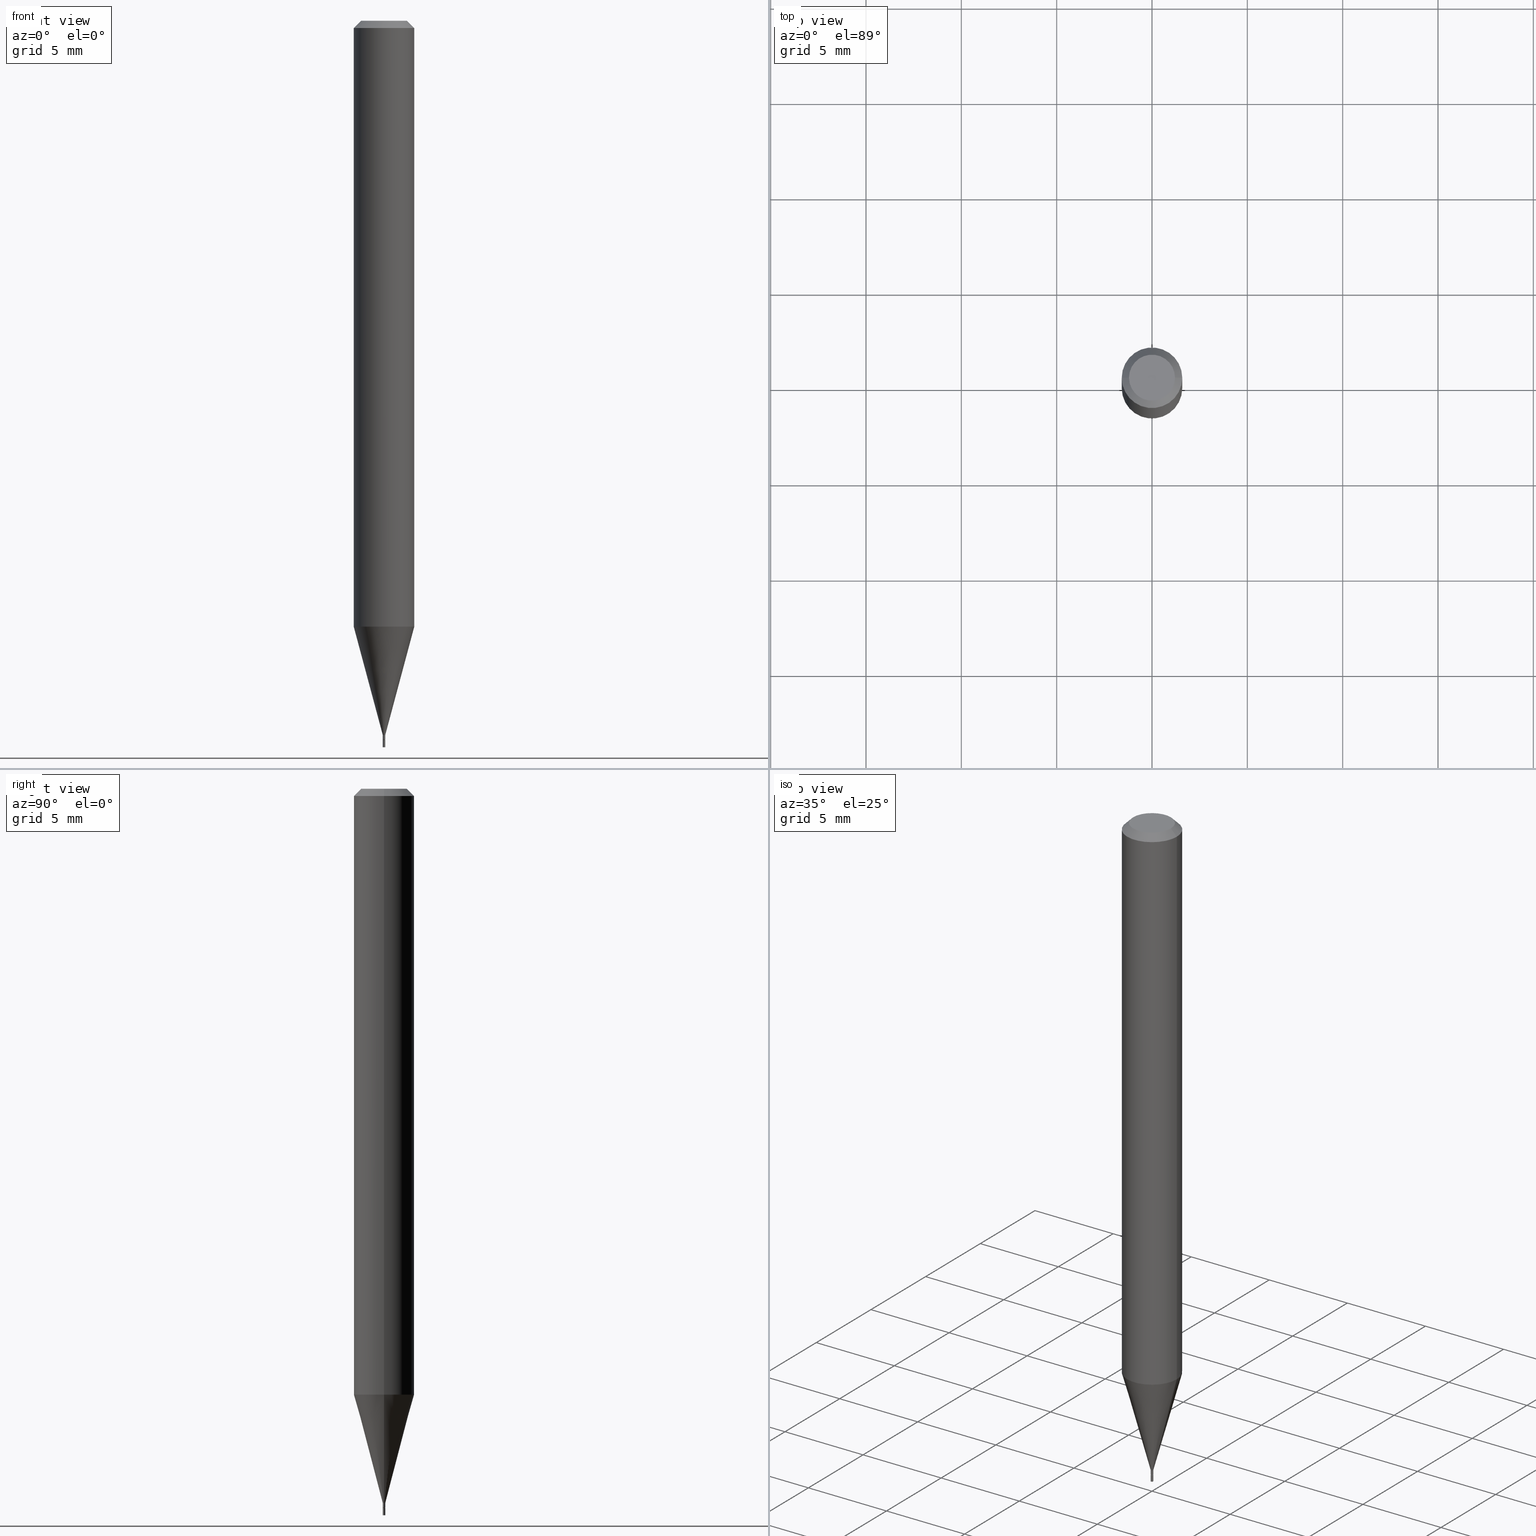
[diagram: canonical four-view strip — front | top / right | iso, engineering-drawing reading convention]
A machine part, canonical four-view strip (front | top / right | iso — engineering-drawing reading convention). The complete STEP part file that produces these views, byte-faithful:
ISO-10303-21;
HEADER;
FILE_DESCRIPTION (( 'STEP AP203' ),
    '1' );
FILE_NAME ('00514.STEP',
    '2024-03-19T21:27:51',
    ( '' ),
    ( '' ),
    'SwSTEP 2.0',
    'SolidWorks 2023',
    '' );
FILE_SCHEMA (( 'CONFIG_CONTROL_DESIGN' ));
ENDSEC;

DATA;
#1 = DIRECTION ( 'NONE',  ( -2.445468806185136597E-29, 3.491481338843145583E-15, 1.000000000000000000 ) ) ;
#2 = DIRECTION ( 'NONE',  ( -2.445468806185136597E-29, 3.491481338843145583E-15, 1.000000000000000000 ) ) ;
#3 = DATE_TIME_ROLE ( 'creation_date' ) ;
#4 = CONICAL_SURFACE ( 'NONE', #196, 0.06250000000000000000, 0.7853981633974278509 ) ;
#5 = EDGE_LOOP ( 'NONE', ( #65, #444, #367, #390 ) ) ;
#6 = ORIENTED_EDGE ( 'NONE', *, *, #362, .T. ) ;
#7 = CARTESIAN_POINT ( 'NONE',  ( 3.607066489123076592E-29, -5.149934974793640632E-15, -1.475000000000000311 ) ) ;
#8 = EDGE_CURVE ( 'NONE', #147, #315, #184, .T. ) ;
#9 = LINE ( 'NONE', #397, #374 ) ;
#10 = ORIENTED_EDGE ( 'NONE', *, *, #393, .T. ) ;
#11 = AXIS2_PLACEMENT_3D ( 'NONE', #157, #123, #87 ) ;
#12 = CARTESIAN_POINT ( 'NONE',  ( 0.06250000000000000000, -4.804546997134555937E-15, -1.251076951545866844 ) ) ;
#13 = DIRECTION ( 'NONE',  ( 1.000000000000000000, -6.982962677686142071E-15, 0.000000000000000000 ) ) ;
#14 = PRODUCT_DEFINITION_SHAPE ( 'NONE', 'NONE',  #312 ) ;
#15 = DATE_AND_TIME ( #138, #425 ) ;
#16 = EDGE_CURVE ( 'NONE', #332, #186, #248, .T. ) ;
#17 = LINE ( 'NONE', #45, #55 ) ;
#18 = CARTESIAN_POINT ( 'NONE',  ( 3.630298442781835897E-29, -5.183104047512649988E-15, -1.484500000000000153 ) ) ;
#19 = CONICAL_SURFACE ( 'NONE', #11, 0.001999999999999997440, 0.7853981633974728149 ) ;
#20 = DIRECTION ( 'NONE',  ( -2.445468806185136597E-29, 3.491481338843145583E-15, 1.000000000000000000 ) ) ;
#21 = DIRECTION ( 'NONE',  ( -2.445468806185136597E-29, 3.491481338843145583E-15, 1.000000000000000000 ) ) ;
#22 = ADVANCED_FACE ( 'NONE', ( #246 ), #81, .T. ) ;
#23 = CARTESIAN_POINT ( 'NONE',  ( 0.04749999999999999362, -4.035134999187568269E-16, 6.157024217726092898E-16 ) ) ;
#24 = CONICAL_SURFACE ( 'NONE', #401, 0.001999999999999997440, 0.7853981633974728149 ) ;
#25 = AXIS2_PLACEMENT_3D ( 'NONE', #228, #21, #257 ) ;
#26 = APPROVAL_PERSON_ORGANIZATION ( #331, #452, #216 ) ;
#27 = ADVANCED_FACE ( 'NONE', ( #293 ), #392, .F. ) ;
#28 = MECHANICAL_CONTEXT ( 'NONE', #384, 'mechanical' ) ;
#29 = ORIENTED_EDGE ( 'NONE', *, *, #172, .F. ) ;
#30 = CALENDAR_DATE ( 2024, 19, 3 ) ;
#31 = ADVANCED_FACE ( 'NONE', ( #318 ), #151, .T. ) ;
#32 = APPROVAL_ROLE ( '' ) ;
#33 = DIRECTION ( 'NONE',  ( 2.445468806185136597E-29, -3.491481338843145583E-15, -1.000000000000000000 ) ) ;
#34 = CARTESIAN_POINT ( 'NONE',  ( -0.002499999999999998751, -5.193272329829392708E-15, -1.485000000000000098 ) ) ;
#35 = ORIENTED_EDGE ( 'NONE', *, *, #96, .T. ) ;
#36 = CARTESIAN_POINT ( 'NONE',  ( 0.002499999999999921122, -5.200561454206865813E-15, -1.484500000000000153 ) ) ;
#37 = VERTEX_POINT ( 'NONE', #284 ) ;
#38 = FACE_OUTER_BOUND ( 'NONE', #5, .T. ) ;
#39 = FACE_OUTER_BOUND ( 'NONE', #102, .T. ) ;
#40 = VERTEX_POINT ( 'NONE', #79 ) ;
#41 = EDGE_CURVE ( 'NONE', #332, #62, #341, .T. ) ;
#42 = CARTESIAN_POINT ( 'NONE',  ( -0.002499999999999998751, 1.776356839400249577E-17, -1.229733772563725911E-31 ) ) ;
#43 = ORIENTED_EDGE ( 'NONE', *, *, #159, .F. ) ;
#44 = VERTEX_POINT ( 'NONE', #437 ) ;
#45 = CARTESIAN_POINT ( 'NONE',  ( 0.002499999999999998751, -1.745740669421565815E-17, 1.219044193948983554E-31 ) ) ;
#46 = EDGE_CURVE ( 'NONE', #291, #404, #446, .T. ) ;
#47 = ORIENTED_EDGE ( 'NONE', *, *, #113, .T. ) ;
#48 = CIRCLE ( 'NONE', #160, 0.06250000000000000000 ) ;
#49 = AXIS2_PLACEMENT_3D ( 'NONE', #127, #454, #300 ) ;
#50 = CARTESIAN_POINT ( 'NONE',  ( 3.631521177184928138E-29, -5.184849788182071492E-15, -1.485000000000000098 ) ) ;
#51 = ORIENTED_EDGE ( 'NONE', *, *, #16, .F. ) ;
#52 = CARTESIAN_POINT ( 'NONE',  ( 0.000000000000000000, 0.000000000000000000, 0.000000000000000000 ) ) ;
#53 = DIRECTION ( 'NONE',  ( 1.000000000000000000, -6.982962677686265922E-15, 4.876176775795935793E-29 ) ) ;
#54 = LINE ( 'NONE', #191, #243 ) ;
#55 = VECTOR ( 'NONE', #335, 39.37007874015748143 ) ;
#56 = CARTESIAN_POINT ( 'NONE',  ( 0.001999999999999997440, -5.198815713537444309E-15, -1.485000000000000098 ) ) ;
#57 = CC_DESIGN_PERSON_AND_ORGANIZATION_ASSIGNMENT ( #80, #440, ( #135 ) ) ;
#58 = DIRECTION ( 'NONE',  ( -0.7071067811865330288, 2.468850131082105205E-15, -0.7071067811865620056 ) ) ;
#59 = DIRECTION ( 'NONE',  ( 0.2588190451025214611, 1.565188264969621573E-15, 0.9659258262890682012 ) ) ;
#60 = CARTESIAN_POINT ( 'NONE',  ( -0.06250000000000000000, 4.440892098500626162E-16, -3.074334431409316114E-30 ) ) ;
#61 = ADVANCED_FACE ( 'NONE', ( #253 ), #418, .F. ) ;
#62 = VERTEX_POINT ( 'NONE', #258 ) ;
#63 = LOCAL_TIME ( 17, 27, 51.00000000000000000, #154 ) ;
#64 = CARTESIAN_POINT ( 'NONE',  ( 0.000000000000000000, 0.000000000000000000, 0.000000000000000000 ) ) ;
#65 = ORIENTED_EDGE ( 'NONE', *, *, #255, .F. ) ;
#66 = APPROVAL_STATUS ( 'not_yet_approved' ) ;
#67 = ADVANCED_FACE ( 'NONE', ( #306 ), #24, .T. ) ;
#68 = DIRECTION ( 'NONE',  ( -2.445468806185136877E-29, 3.491481338843145188E-15, 1.000000000000000000 ) ) ;
#69 = ORIENTED_EDGE ( 'NONE', *, *, #412, .T. ) ;
#70 = CARTESIAN_POINT ( 'NONE',  ( 0.000000000000000000, 0.000000000000000000, 0.000000000000000000 ) ) ;
#71 = CIRCLE ( 'NONE', #456, 0.04749999999999999362 ) ;
#72 = CARTESIAN_POINT ( 'NONE',  ( 3.316907271900976096E-16, 0.04749999999999999362, 1.420058472912539912E-16 ) ) ;
#73 = DESIGN_CONTEXT ( 'detailed design', #310, 'design' ) ;
#74 = DIRECTION ( 'NONE',  ( 1.000000000000000000, -6.982962677686267499E-15, 4.876176775795936353E-29 ) ) ;
#75 = ORIENTED_EDGE ( 'NONE', *, *, #266, .T. ) ;
#76 = DIRECTION ( 'NONE',  ( -2.445468806185136597E-29, 3.491481338843145583E-15, 1.000000000000000000 ) ) ;
#77 = EDGE_CURVE ( 'NONE', #404, #44, #192, .T. ) ;
#78 = ORIENTED_EDGE ( 'NONE', *, *, #266, .F. ) ;
#79 = CARTESIAN_POINT ( 'NONE',  ( -0.04749999999999999362, 3.578768372314221353E-16, 6.157024217726043594E-16 ) ) ;
#80 = PERSON_AND_ORGANIZATION ( #419, #304 ) ;
#81 = CONICAL_SURFACE ( 'NONE', #460, 0.002499999999999640531, 0.2617993877991501295 ) ;
#82 = CIRCLE ( 'NONE', #411, 0.002499999999999998751 ) ;
#83 = DIRECTION ( 'NONE',  ( -2.445468806185136597E-29, 3.491481338843145583E-15, 1.000000000000000000 ) ) ;
#84 = DIRECTION ( 'NONE',  ( 1.000000000000000000, -6.982962677686265922E-15, 4.876176775795935793E-29 ) ) ;
#85 = CARTESIAN_POINT ( 'NONE',  ( 3.668203209277705088E-31, -5.237222008264718399E-17, -0.01499999999999999944 ) ) ;
#86 = PERSON_AND_ORGANIZATION_ROLE ( 'classification_officer' ) ;
#87 = DIRECTION ( 'NONE',  ( 1.000000000000000000, -6.982962677686342441E-15, 0.000000000000000000 ) ) ;
#88 = CARTESIAN_POINT ( 'NONE',  ( -0.002499999999999921122, -5.165340479118648651E-15, -1.484500000000000153 ) ) ;
#89 = DIRECTION ( 'NONE',  ( -2.445468806185136597E-29, 3.491481338843145583E-15, 1.000000000000000000 ) ) ;
#90 = CARTESIAN_POINT ( 'NONE',  ( 3.631521177184928138E-29, -5.184849788182071492E-15, -1.485000000000000098 ) ) ;
#91 = EDGE_CURVE ( 'NONE', #386, #44, #17, .T. ) ;
#92 = DIRECTION ( 'NONE',  ( -2.445468806185136597E-29, 3.491481338843145583E-15, 1.000000000000000000 ) ) ;
#93 = CLOSED_SHELL ( 'NONE', ( #466, #67, #368, #336, #22, #163, #241, #142, #27, #195, #234, #31 ) ) ;
#94 = DIRECTION ( 'NONE',  ( -2.445468806185136597E-29, 3.491481338843145583E-15, 1.000000000000000000 ) ) ;
#95 = LOCAL_TIME ( 17, 27, 51.00000000000000000, #146 ) ;
#96 = EDGE_CURVE ( 'NONE', #355, #147, #373, .T. ) ;
#97 = PERSON_AND_ORGANIZATION ( #419, #304 ) ;
#98 = CARTESIAN_POINT ( 'NONE',  ( -1.505681066337554235E-44, 2.149713515899588158E-30, 6.157024217726067260E-16 ) ) ;
#99 = AXIS2_PLACEMENT_3D ( 'NONE', #212, #360, #181 ) ;
#100 = CIRCLE ( 'NONE', #131, 0.06250000000000000000 ) ;
#101 = CARTESIAN_POINT ( 'NONE',  ( 0.000000000000000000, 0.000000000000000000, 0.000000000000000000 ) ) ;
#102 = EDGE_LOOP ( 'NONE', ( #217, #420, #205, #148 ) ) ;
#103 = DIRECTION ( 'NONE',  ( 1.000000000000000000, -6.982962677686266711E-15, 4.876176775795936914E-29 ) ) ;
#104 = ORIENTED_EDGE ( 'NONE', *, *, #276, .F. ) ;
#105 = EDGE_CURVE ( 'NONE', #315, #147, #48, .T. ) ;
#106 = PRODUCT ( '00514', '00514', '', ( #28 ) ) ;
#107 = DIRECTION ( 'NONE',  ( -1.000000000000000000, 6.982962677686266711E-15, 0.000000000000000000 ) ) ;
#108 = DIRECTION ( 'NONE',  ( -2.445468806185136597E-29, 3.491481338843145583E-15, 1.000000000000000000 ) ) ;
#109 = DIRECTION ( 'NONE',  ( -2.445468806185136597E-29, 3.491481338843145583E-15, 1.000000000000000000 ) ) ;
#110 = CARTESIAN_POINT ( 'NONE',  ( -0.002499999999999780610, 1.776356839400094578E-17, -1.229733772563618624E-31 ) ) ;
#111 = EDGE_LOOP ( 'NONE', ( #6, #197, #152, #237 ) ) ;
#112 = DIRECTION ( 'NONE',  ( -2.445468806185136877E-29, 3.491481338843145188E-15, 1.000000000000000000 ) ) ;
#113 = EDGE_CURVE ( 'NONE', #40, #315, #414, .T. ) ;
#114 = CARTESIAN_POINT ( 'NONE',  ( 0.06250000000000000000, -4.888073874380388472E-16, -0.01499999999999999944 ) ) ;
#115 = APPROVAL_DATE_TIME ( #299, #443 ) ;
#116 = ORIENTED_EDGE ( 'NONE', *, *, #393, .F. ) ;
#117 = DIRECTION ( 'NONE',  ( -2.445468806185136597E-29, 3.491481338843145583E-15, 1.000000000000000000 ) ) ;
#118 = SHAPE_DEFINITION_REPRESENTATION ( #14, #409 ) ;
#119 =( GEOMETRIC_REPRESENTATION_CONTEXT ( 3 ) GLOBAL_UNCERTAINTY_ASSIGNED_CONTEXT ( ( #268 ) ) GLOBAL_UNIT_ASSIGNED_CONTEXT ( ( #395, #346, #317 ) ) REPRESENTATION_CONTEXT ( 'NONE', 'WORKASPACE' ) );
#120 = ORIENTED_EDGE ( 'NONE', *, *, #412, .F. ) ;
#121 = PLANE ( 'NONE',  #320 ) ;
#122 = ORIENTED_EDGE ( 'NONE', *, *, #41, .F. ) ;
#123 = DIRECTION ( 'NONE',  ( -2.445468806185136597E-29, 3.491481338843145583E-15, 1.000000000000000000 ) ) ;
#124 = CARTESIAN_POINT ( 'NONE',  ( 3.631521177184928138E-29, -5.184849788182071492E-15, -1.485000000000000098 ) ) ;
#125 = VECTOR ( 'NONE', #112, 39.37007874015748143 ) ;
#126 = AXIS2_PLACEMENT_3D ( 'NONE', #349, #388, #165 ) ;
#127 = CARTESIAN_POINT ( 'NONE',  ( 0.000000000000000000, 0.000000000000000000, 0.000000000000000000 ) ) ;
#128 = DIRECTION ( 'NONE',  ( -2.445468806185136597E-29, 3.491481338843145583E-15, 1.000000000000000000 ) ) ;
#129 = EDGE_CURVE ( 'NONE', #44, #404, #453, .T. ) ;
#130 = CARTESIAN_POINT ( 'NONE',  ( -0.06250000000000000000, -1.766152815080843254E-15, -0.01499999999999999944 ) ) ;
#131 = AXIS2_PLACEMENT_3D ( 'NONE', #278, #429, #387 ) ;
#132 = ORIENTED_EDGE ( 'NONE', *, *, #96, .F. ) ;
#133 = ORIENTED_EDGE ( 'NONE', *, *, #249, .T. ) ;
#134 = AXIS2_PLACEMENT_3D ( 'NONE', #329, #309, #53 ) ;
#135 = PRODUCT_DEFINITION_FORMATION_WITH_SPECIFIED_SOURCE ( 'ANY', '', #106, .NOT_KNOWN. ) ;
#136 = ADVANCED_FACE ( 'NONE', ( #231 ), #229, .F. ) ;
#137 = APPROVAL_DATE_TIME ( #464, #167 ) ;
#138 = CALENDAR_DATE ( 2024, 19, 3 ) ;
#139 = DIRECTION ( 'NONE',  ( 0.7071067811865647812, -2.468850131082438104E-15, 0.7071067811865301422 ) ) ;
#140 = LENGTH_MEASURE_WITH_UNIT ( LENGTH_MEASURE( 0.02539999999999999897 ), #168 );
#141 = VERTEX_POINT ( 'NONE', #449 ) ;
#142 = ADVANCED_FACE ( 'NONE', ( #327 ), #4, .T. ) ;
#143 = DIRECTION ( 'NONE',  ( 1.000000000000000000, -6.982962677686267499E-15, 4.876176775795936353E-29 ) ) ;
#144 = AXIS2_PLACEMENT_3D ( 'NONE', #298, #370, #221 ) ;
#145 = AXIS2_PLACEMENT_3D ( 'NONE', #70, #108, #74 ) ;
#146 = COORDINATED_UNIVERSAL_TIME_OFFSET ( 5, 0, .BEHIND. ) ;
#147 = VERTEX_POINT ( 'NONE', #114 ) ;
#148 = ORIENTED_EDGE ( 'NONE', *, *, #417, .F. ) ;
#149 = PERSON_AND_ORGANIZATION_ROLE ( 'creator' ) ;
#150 = EDGE_LOOP ( 'NONE', ( #290, #210, #177, #247 ) ) ;
#151 = CYLINDRICAL_SURFACE ( 'NONE', #224, 0.002499999999999780610 ) ;
#152 = ORIENTED_EDGE ( 'NONE', *, *, #8, .F. ) ;
#153 = DIRECTION ( 'NONE',  ( -2.445468806185136877E-29, 3.491481338843145188E-15, 1.000000000000000000 ) ) ;
#154 = COORDINATED_UNIVERSAL_TIME_OFFSET ( 5, 0, .BEHIND. ) ;
#155 = VECTOR ( 'NONE', #162, 39.37007874015748143 ) ;
#156 = APPROVAL_DATE_TIME ( #251, #452 ) ;
#157 = CARTESIAN_POINT ( 'NONE',  ( 3.631521177184928138E-29, -5.184849788182071492E-15, -1.485000000000000098 ) ) ;
#158 = LINE ( 'NONE', #60, #155 ) ;
#159 = EDGE_CURVE ( 'NONE', #295, #186, #259, .T. ) ;
#160 = AXIS2_PLACEMENT_3D ( 'NONE', #455, #128, #262 ) ;
#161 = CC_DESIGN_APPROVAL ( #167, ( #312 ) ) ;
#162 = DIRECTION ( 'NONE',  ( -2.445468806185136877E-29, 3.491481338843145188E-15, 1.000000000000000000 ) ) ;
#163 = ADVANCED_FACE ( 'NONE', ( #39 ), #358, .T. ) ;
#164 = VECTOR ( 'NONE', #302, 39.37007874015748143 ) ;
#165 = DIRECTION ( 'NONE',  ( 1.000000000000000000, -6.982962677686366107E-15, 0.000000000000000000 ) ) ;
#166 = EDGE_LOOP ( 'NONE', ( #122, #104 ) ) ;
#167 = APPROVAL ( #66, 'UNSPECIFIED' ) ;
#168 =( LENGTH_UNIT ( ) NAMED_UNIT ( * ) SI_UNIT ( $, .METRE. ) );
#169 = ORIENTED_EDGE ( 'NONE', *, *, #249, .F. ) ;
#170 = AXIS2_PLACEMENT_3D ( 'NONE', #18, #20, #451 ) ;
#171 = COORDINATED_UNIVERSAL_TIME_OFFSET ( 5, 0, .BEHIND. ) ;
#172 = EDGE_CURVE ( 'NONE', #141, #350, #347, .T. ) ;
#173 = ORIENTED_EDGE ( 'NONE', *, *, #340, .F. ) ;
#174 = CARTESIAN_POINT ( 'NONE',  ( 3.668203209277705088E-31, -5.237222008264718399E-17, -0.01499999999999999944 ) ) ;
#175 = ORIENTED_EDGE ( 'NONE', *, *, #16, .T. ) ;
#176 = CIRCLE ( 'NONE', #330, 0.001999999999999997440 ) ;
#177 = ORIENTED_EDGE ( 'NONE', *, *, #129, .F. ) ;
#178 = DIRECTION ( 'NONE',  ( 1.000000000000000000, -6.982962677686366107E-15, 0.000000000000000000 ) ) ;
#179 = PERSON_AND_ORGANIZATION ( #419, #304 ) ;
#180 = EDGE_LOOP ( 'NONE', ( #448, #245, #208, #29 ) ) ;
#181 = DIRECTION ( 'NONE',  ( 1.000000000000000000, -6.982962677686342441E-15, 0.000000000000000000 ) ) ;
#182 = PRODUCT_RELATED_PRODUCT_CATEGORY ( 'detail', '', ( #106 ) ) ;
#183 = DIRECTION ( 'NONE',  ( -2.445468806185136597E-29, 3.491481338843145583E-15, 1.000000000000000000 ) ) ;
#184 = CIRCLE ( 'NONE', #213, 0.06250000000000000000 ) ;
#185 = AXIS2_PLACEMENT_3D ( 'NONE', #101, #461, #103 ) ;
#186 = VERTEX_POINT ( 'NONE', #36 ) ;
#187 = DIRECTION ( 'NONE',  ( -2.445468806185136597E-29, 3.491481338843145583E-15, 1.000000000000000000 ) ) ;
#188 = ORIENTED_EDGE ( 'NONE', *, *, #46, .F. ) ;
#189 = EDGE_CURVE ( 'NONE', #204, #147, #9, .T. ) ;
#190 = DIRECTION ( 'NONE',  ( 1.000000000000000000, -6.982962677686266711E-15, 4.876176775795935793E-29 ) ) ;
#191 = CARTESIAN_POINT ( 'NONE',  ( -0.002499999999999640531, -5.132171406399640872E-15, -1.475000000000000311 ) ) ;
#192 = CIRCLE ( 'NONE', #250, 0.002499999999999998751 ) ;
#193 = AXIS2_PLACEMENT_3D ( 'NONE', #98, #381, #351 ) ;
#194 = FACE_OUTER_BOUND ( 'NONE', #111, .T. ) ;
#195 = ADVANCED_FACE ( 'NONE', ( #292 ), #121, .F. ) ;
#196 = AXIS2_PLACEMENT_3D ( 'NONE', #85, #319, #280 ) ;
#197 = ORIENTED_EDGE ( 'NONE', *, *, #255, .T. ) ;
#198 = LINE ( 'NONE', #371, #226 ) ;
#199 = SECURITY_CLASSIFICATION ( '', '', #325 ) ;
#200 = FACE_OUTER_BOUND ( 'NONE', #150, .T. ) ;
#201 = EDGE_LOOP ( 'NONE', ( #463, #380 ) ) ;
#202 = EDGE_CURVE ( 'NONE', #186, #350, #220, .T. ) ;
#203 = LINE ( 'NONE', #433, #322 ) ;
#204 = VERTEX_POINT ( 'NONE', #12 ) ;
#205 = ORIENTED_EDGE ( 'NONE', *, *, #340, .T. ) ;
#206 = AXIS2_PLACEMENT_3D ( 'NONE', #72, #209, #399 ) ;
#207 = FACE_OUTER_BOUND ( 'NONE', #240, .T. ) ;
#208 = ORIENTED_EDGE ( 'NONE', *, *, #202, .T. ) ;
#209 = DIRECTION ( 'NONE',  ( 2.438088387897960049E-29, -3.491481338843145188E-15, -1.000000000000000000 ) ) ;
#210 = ORIENTED_EDGE ( 'NONE', *, *, #46, .T. ) ;
#211 = PERSON_AND_ORGANIZATION ( #419, #304 ) ;
#212 = CARTESIAN_POINT ( 'NONE',  ( 3.631521177184928138E-29, -5.184849788182071492E-15, -1.485000000000000098 ) ) ;
#213 = AXIS2_PLACEMENT_3D ( 'NONE', #174, #363, #323 ) ;
#214 = CC_DESIGN_APPROVAL ( #452, ( #135 ) ) ;
#215 = CARTESIAN_POINT ( 'NONE',  ( 3.607066489123076592E-29, -5.149934974793640632E-15, -1.475000000000000311 ) ) ;
#216 = APPROVAL_ROLE ( '' ) ;
#217 = ORIENTED_EDGE ( 'NONE', *, *, #307, .F. ) ;
#218 = CC_DESIGN_PERSON_AND_ORGANIZATION_ASSIGNMENT ( #179, #149, ( #135 ) ) ;
#219 = APPROVAL_ROLE ( '' ) ;
#220 = LINE ( 'NONE', #254, #236 ) ;
#221 = DIRECTION ( 'NONE',  ( -1.000000000000000000, 6.982962677686265922E-15, -4.876176775795935793E-29 ) ) ;
#222 = EDGE_LOOP ( 'NONE', ( #132, #357, #47, #426 ) ) ;
#223 = DIRECTION ( 'NONE',  ( 1.000000000000000000, -6.982962677686342441E-15, 0.000000000000000000 ) ) ;
#224 = AXIS2_PLACEMENT_3D ( 'NONE', #324, #2, #143 ) ;
#225 = CC_DESIGN_PERSON_AND_ORGANIZATION_ASSIGNMENT ( #275, #427, ( #312 ) ) ;
#226 = VECTOR ( 'NONE', #59, 39.37007874015747433 ) ;
#227 = CIRCLE ( 'NONE', #193, 0.04749999999999999362 ) ;
#228 = CARTESIAN_POINT ( 'NONE',  ( 3.668203209277704895E-29, -5.237222008264718177E-15, -1.500000000000000222 ) ) ;
#229 = PLANE ( 'NONE',  #144 ) ;
#230 = CARTESIAN_POINT ( 'NONE',  ( -0.002499999999999998751, -5.193272329829392708E-15, -1.500000000000000222 ) ) ;
#231 = FACE_OUTER_BOUND ( 'NONE', #201, .T. ) ;
#232 = CIRCLE ( 'NONE', #25, 0.002499999999999998751 ) ;
#233 = DIRECTION ( 'NONE',  ( 1.000000000000000000, -6.982962677686342441E-15, 0.000000000000000000 ) ) ;
#234 = ADVANCED_FACE ( 'NONE', ( #297 ), #19, .T. ) ;
#235 = PERSON_AND_ORGANIZATION_ROLE ( 'design_owner' ) ;
#236 = VECTOR ( 'NONE', #328, 39.37007874015748143 ) ;
#237 = ORIENTED_EDGE ( 'NONE', *, *, #189, .F. ) ;
#238 = AXIS2_PLACEMENT_3D ( 'NONE', #279, #1, #378 ) ;
#239 = APPLICATION_PROTOCOL_DEFINITION ( 'international standard', 'config_control_design', 1994, #310 ) ;
#240 = EDGE_LOOP ( 'NONE', ( #116, #35, #286, #273 ) ) ;
#241 = ADVANCED_FACE ( 'NONE', ( #38 ), #308, .T. ) ;
#242 = CARTESIAN_POINT ( 'NONE',  ( 0.002499999999999998751, -5.254679414958934001E-15, -1.500000000000000222 ) ) ;
#243 = VECTOR ( 'NONE', #457, 39.37007874015747433 ) ;
#244 = CARTESIAN_POINT ( 'NONE',  ( 0.001999999999999997440, -5.198815713537444309E-15, -1.485000000000000098 ) ) ;
#245 = ORIENTED_EDGE ( 'NONE', *, *, #159, .T. ) ;
#246 = FACE_OUTER_BOUND ( 'NONE', #396, .T. ) ;
#247 = ORIENTED_EDGE ( 'NONE', *, *, #91, .F. ) ;
#248 = LINE ( 'NONE', #244, #445 ) ;
#249 = EDGE_CURVE ( 'NONE', #186, #295, #303, .T. ) ;
#250 = AXIS2_PLACEMENT_3D ( 'NONE', #50, #187, #334 ) ;
#251 = DATE_AND_TIME ( #285, #63 ) ;
#252 = EDGE_LOOP ( 'NONE', ( #441, #10 ) ) ;
#253 = FACE_OUTER_BOUND ( 'NONE', #415, .T. ) ;
#254 = CARTESIAN_POINT ( 'NONE',  ( 0.002499999999999780610, -1.745740669421413589E-17, 1.219044193948877143E-31 ) ) ;
#255 = EDGE_CURVE ( 'NONE', #37, #315, #158, .T. ) ;
#256 = ORIENTED_EDGE ( 'NONE', *, *, #458, .T. ) ;
#257 = DIRECTION ( 'NONE',  ( 1.000000000000000000, -6.982962677686142071E-15, 0.000000000000000000 ) ) ;
#258 = CARTESIAN_POINT ( 'NONE',  ( -0.001999999999999997440, -5.167989706292759063E-15, -1.485000000000000098 ) ) ;
#259 = CIRCLE ( 'NONE', #422, 0.002499999999999921122 ) ;
#260 = CIRCLE ( 'NONE', #126, 0.002499999999999640531 ) ;
#261 = FACE_OUTER_BOUND ( 'NONE', #400, .T. ) ;
#262 = DIRECTION ( 'NONE',  ( 1.000000000000000000, -6.982962677686266711E-15, 0.000000000000000000 ) ) ;
#263 = CARTESIAN_POINT ( 'NONE',  ( -0.06250000000000000000, 3.840629472727444916E-16, -0.01499999999999999944 ) ) ;
#264 = MANIFOLD_SOLID_BREP ( 'Body-Move/Copy2[1]', #389 ) ;
#265 = ORIENTED_EDGE ( 'NONE', *, *, #362, .F. ) ;
#266 = EDGE_CURVE ( 'NONE', #291, #386, #232, .T. ) ;
#267 = APPROVAL_PERSON_ORGANIZATION ( #382, #167, #32 ) ;
#268 = UNCERTAINTY_MEASURE_WITH_UNIT (LENGTH_MEASURE( 1.000000000000000082E-05 ), #395, 'distance_accuracy_value', 'NONE');
#269 = ORIENTED_EDGE ( 'NONE', *, *, #41, .T. ) ;
#270 = APPLICATION_PROTOCOL_DEFINITION ( 'international standard', 'config_control_design', 1994, #384 ) ;
#271 = ORIENTED_EDGE ( 'NONE', *, *, #431, .T. ) ;
#272 = AXIS2_PLACEMENT_3D ( 'NONE', #305, #94, #190 ) ;
#273 = ORIENTED_EDGE ( 'NONE', *, *, #113, .F. ) ;
#274 = LOCAL_TIME ( 17, 27, 51.00000000000000000, #356 ) ;
#275 = PERSON_AND_ORGANIZATION ( #419, #304 ) ;
#276 = EDGE_CURVE ( 'NONE', #62, #332, #176, .T. ) ;
#277 = EDGE_LOOP ( 'NONE', ( #365, #398, #175, #43 ) ) ;
#278 = CARTESIAN_POINT ( 'NONE',  ( 3.059469659142611361E-29, -4.368111829779164268E-15, -1.251076951545866844 ) ) ;
#279 = CARTESIAN_POINT ( 'NONE',  ( 3.059469659142611361E-29, -4.368111829779164268E-15, -1.251076951545866844 ) ) ;
#280 = DIRECTION ( 'NONE',  ( -1.000000000000000000, 6.982962677686266711E-15, 0.000000000000000000 ) ) ;
#281 = DIRECTION ( 'NONE',  ( -0.7071067811865647812, 7.493145998870415691E-15, 0.7071067811865301422 ) ) ;
#282 = ORIENTED_EDGE ( 'NONE', *, *, #321, .F. ) ;
#283 = VECTOR ( 'NONE', #58, 39.37007874015748143 ) ;
#284 = CARTESIAN_POINT ( 'NONE',  ( -0.06250000000000000000, -3.924022619929102440E-15, -1.251076951545866844 ) ) ;
#285 = CALENDAR_DATE ( 2024, 19, 3 ) ;
#286 = ORIENTED_EDGE ( 'NONE', *, *, #8, .T. ) ;
#287 = ADVANCED_FACE ( 'NONE', ( #261 ), #410, .T. ) ;
#288 = CARTESIAN_POINT ( 'NONE',  ( 3.630298442781835897E-29, -5.183104047512649988E-15, -1.484500000000000153 ) ) ;
#289 = APPROVAL_STATUS ( 'not_yet_approved' ) ;
#290 = ORIENTED_EDGE ( 'NONE', *, *, #321, .T. ) ;
#291 = VERTEX_POINT ( 'NONE', #230 ) ;
#292 = FACE_OUTER_BOUND ( 'NONE', #166, .T. ) ;
#293 = FACE_OUTER_BOUND ( 'NONE', #252, .T. ) ;
#294 = AXIS2_PLACEMENT_3D ( 'NONE', #64, #343, #424 ) ;
#295 = VERTEX_POINT ( 'NONE', #88 ) ;
#296 = EDGE_CURVE ( 'NONE', #40, #355, #71, .T. ) ;
#297 = FACE_OUTER_BOUND ( 'NONE', #277, .T. ) ;
#298 = CARTESIAN_POINT ( 'NONE',  ( 1.745740669425197348E-17, 0.002499999999994814096, -1.485000000000000098 ) ) ;
#299 = DATE_AND_TIME ( #403, #274 ) ;
#300 = DIRECTION ( 'NONE',  ( 1.000000000000000000, -6.982962677686266711E-15, 4.876176775795936914E-29 ) ) ;
#301 = DIRECTION ( 'NONE',  ( -2.445468806185136597E-29, 3.491481338843145583E-15, 1.000000000000000000 ) ) ;
#302 = DIRECTION ( 'NONE',  ( 0.7071067811865330288, -7.319954787623207136E-15, -0.7071067811865620056 ) ) ;
#303 = CIRCLE ( 'NONE', #170, 0.002499999999999921122 ) ;
#304 = ORGANIZATION ( 'UNSPECIFIED', 'UNSPECIFIED', '' ) ;
#305 = CARTESIAN_POINT ( 'NONE',  ( 0.000000000000000000, 0.000000000000000000, 0.000000000000000000 ) ) ;
#306 = FACE_OUTER_BOUND ( 'NONE', #326, .T. ) ;
#307 = EDGE_CURVE ( 'NONE', #141, #37, #54, .T. ) ;
#308 = CYLINDRICAL_SURFACE ( 'NONE', #272, 0.06250000000000000000 ) ;
#309 = DIRECTION ( 'NONE',  ( -2.438088387897960049E-29, 3.491481338843145188E-15, 1.000000000000000000 ) ) ;
#310 = APPLICATION_CONTEXT ( 'configuration controlled 3d designs of mechanical parts and assemblies' ) ;
#311 = AXIS2_PLACEMENT_3D ( 'NONE', #215, #109, #394 ) ;
#312 = PRODUCT_DEFINITION ( 'UNKNOWN', '', #135, #73 ) ;
#313 = CYLINDRICAL_SURFACE ( 'NONE', #145, 0.002499999999999780610 ) ;
#314 = AXIS2_PLACEMENT_3D ( 'NONE', #90, #183, #13 ) ;
#315 = VERTEX_POINT ( 'NONE', #130 ) ;
#316 = CONICAL_SURFACE ( 'NONE', #375, 0.06250000000000000000, 0.7853981633974278509 ) ;
#317 =( NAMED_UNIT ( * ) SI_UNIT ( $, .STERADIAN. ) SOLID_ANGLE_UNIT ( ) );
#318 = FACE_OUTER_BOUND ( 'NONE', #180, .T. ) ;
#319 = DIRECTION ( 'NONE',  ( 2.445468806185136597E-29, -3.491481338843145583E-15, -1.000000000000000000 ) ) ;
#320 = AXIS2_PLACEMENT_3D ( 'NONE', #406, #333, #84 ) ;
#321 = EDGE_CURVE ( 'NONE', #386, #291, #82, .T. ) ;
#322 = VECTOR ( 'NONE', #281, 39.37007874015748854 ) ;
#323 = DIRECTION ( 'NONE',  ( 1.000000000000000000, -6.982962677686266711E-15, 0.000000000000000000 ) ) ;
#324 = CARTESIAN_POINT ( 'NONE',  ( 0.000000000000000000, 0.000000000000000000, 0.000000000000000000 ) ) ;
#325 = SECURITY_CLASSIFICATION_LEVEL ( 'unclassified' ) ;
#326 = EDGE_LOOP ( 'NONE', ( #269, #271, #169, #51 ) ) ;
#327 = FACE_OUTER_BOUND ( 'NONE', #222, .T. ) ;
#328 = DIRECTION ( 'NONE',  ( -2.445468806185136877E-29, 3.491481338843145188E-15, 1.000000000000000000 ) ) ;
#329 = CARTESIAN_POINT ( 'NONE',  ( 3.576687321579069994E-29, -5.368277968210015545E-15, -1.500000000000000222 ) ) ;
#330 = AXIS2_PLACEMENT_3D ( 'NONE', #124, #301, #233 ) ;
#331 = PERSON_AND_ORGANIZATION ( #419, #304 ) ;
#332 = VERTEX_POINT ( 'NONE', #56 ) ;
#333 = DIRECTION ( 'NONE',  ( -2.438088387897960049E-29, 3.491481338843145188E-15, 1.000000000000000000 ) ) ;
#334 = DIRECTION ( 'NONE',  ( 1.000000000000000000, -6.982962677686142071E-15, 0.000000000000000000 ) ) ;
#335 = DIRECTION ( 'NONE',  ( -2.445468806185136877E-29, 3.491481338843145188E-15, 1.000000000000000000 ) ) ;
#336 = ADVANCED_FACE ( 'NONE', ( #194 ), #338, .T. ) ;
#337 = CC_DESIGN_APPROVAL ( #443, ( #199 ) ) ;
#338 = CYLINDRICAL_SURFACE ( 'NONE', #391, 0.06250000000000000000 ) ;
#339 = CARTESIAN_POINT ( 'NONE',  ( 0.002499999999999640531, -5.167392381487854090E-15, -1.475000000000000311 ) ) ;
#340 = EDGE_CURVE ( 'NONE', #350, #204, #198, .T. ) ;
#341 = CIRCLE ( 'NONE', #99, 0.001999999999999997440 ) ;
#342 = APPROVAL_PERSON_ORGANIZATION ( #211, #443, #219 ) ;
#343 = DIRECTION ( 'NONE',  ( 0.000000000000000000, 0.000000000000000000, 1.000000000000000000 ) ) ;
#344 = EDGE_LOOP ( 'NONE', ( #133, #256, #120, #428 ) ) ;
#345 = COORDINATED_UNIVERSAL_TIME_OFFSET ( 5, 0, .BEHIND. ) ;
#346 =( NAMED_UNIT ( * ) PLANE_ANGLE_UNIT ( ) SI_UNIT ( $, .RADIAN. ) );
#347 = CIRCLE ( 'NONE', #434, 0.002499999999999640531 ) ;
#348 = CARTESIAN_POINT ( 'NONE',  ( 3.668203209277705088E-31, -5.237222008264718399E-17, -0.01499999999999999944 ) ) ;
#349 = CARTESIAN_POINT ( 'NONE',  ( 3.607066489123076592E-29, -5.149934974793640632E-15, -1.475000000000000311 ) ) ;
#350 = VERTEX_POINT ( 'NONE', #339 ) ;
#351 = DIRECTION ( 'NONE',  ( 1.000000000000000000, -6.982962677686267499E-15, 4.852736867747366768E-29 ) ) ;
#352 = DIRECTION ( 'NONE',  ( -2.445468806185136597E-29, 3.491481338843145583E-15, 1.000000000000000000 ) ) ;
#353 = CYLINDRICAL_SURFACE ( 'NONE', #185, 0.002499999999999998751 ) ;
#354 = CC_DESIGN_DATE_AND_TIME_ASSIGNMENT ( #442, #439, ( #199 ) ) ;
#355 = VERTEX_POINT ( 'NONE', #23 ) ;
#356 = COORDINATED_UNIVERSAL_TIME_OFFSET ( 5, 0, .BEHIND. ) ;
#357 = ORIENTED_EDGE ( 'NONE', *, *, #296, .F. ) ;
#358 = CONICAL_SURFACE ( 'NONE', #311, 0.002499999999999640531, 0.2617993877991501295 ) ;
#359 = CIRCLE ( 'NONE', #238, 0.06250000000000000000 ) ;
#360 = DIRECTION ( 'NONE',  ( -2.445468806185136597E-29, 3.491481338843145583E-15, 1.000000000000000000 ) ) ;
#361 = DIRECTION ( 'NONE',  ( 1.000000000000000000, -6.982962677686366107E-15, 0.000000000000000000 ) ) ;
#362 = EDGE_CURVE ( 'NONE', #204, #37, #100, .T. ) ;
#363 = DIRECTION ( 'NONE',  ( -2.445468806185136597E-29, 3.491481338843145583E-15, 1.000000000000000000 ) ) ;
#364 = CARTESIAN_POINT ( 'NONE',  ( 0.06250000000000000000, -4.811533449433679005E-16, -0.01499999999999999944 ) ) ;
#365 = ORIENTED_EDGE ( 'NONE', *, *, #431, .F. ) ;
#366 = CALENDAR_DATE ( 2024, 19, 3 ) ;
#367 = ORIENTED_EDGE ( 'NONE', *, *, #189, .T. ) ;
#368 = ADVANCED_FACE ( 'NONE', ( #207 ), #316, .T. ) ;
#369 = DIRECTION ( 'NONE',  ( 1.000000000000000000, -6.982962677686267499E-15, 4.852736867747366768E-29 ) ) ;
#370 = DIRECTION ( 'NONE',  ( 2.438088387897960049E-29, -3.491481338843145188E-15, -1.000000000000000000 ) ) ;
#371 = CARTESIAN_POINT ( 'NONE',  ( 0.002499999999999640531, -5.167392381487854090E-15, -1.475000000000000311 ) ) ;
#372 = DIRECTION ( 'NONE',  ( 1.000000000000000000, -6.982962677686142071E-15, 0.000000000000000000 ) ) ;
#373 = LINE ( 'NONE', #364, #164 ) ;
#374 = VECTOR ( 'NONE', #153, 39.37007874015748143 ) ;
#375 = AXIS2_PLACEMENT_3D ( 'NONE', #348, #33, #107 ) ;
#376 = CC_DESIGN_PERSON_AND_ORGANIZATION_ASSIGNMENT ( #408, #86, ( #199 ) ) ;
#377 = ORIENTED_EDGE ( 'NONE', *, *, #91, .T. ) ;
#378 = DIRECTION ( 'NONE',  ( 1.000000000000000000, -6.982962677686270655E-15, 0.000000000000000000 ) ) ;
#379 = VECTOR ( 'NONE', #68, 39.37007874015748143 ) ;
#380 = ORIENTED_EDGE ( 'NONE', *, *, #77, .T. ) ;
#381 = DIRECTION ( 'NONE',  ( -2.445468806185136597E-29, 3.491481338843145583E-15, 1.000000000000000000 ) ) ;
#382 = PERSON_AND_ORGANIZATION ( #419, #304 ) ;
#383 = CC_DESIGN_DATE_AND_TIME_ASSIGNMENT ( #15, #3, ( #312 ) ) ;
#384 = APPLICATION_CONTEXT ( 'configuration controlled 3d designs of mechanical parts and assemblies' ) ;
#385 = LINE ( 'NONE', #110, #379 ) ;
#386 = VERTEX_POINT ( 'NONE', #242 ) ;
#387 = DIRECTION ( 'NONE',  ( 1.000000000000000000, -6.982962677686270655E-15, 0.000000000000000000 ) ) ;
#388 = DIRECTION ( 'NONE',  ( -2.445468806185136597E-29, 3.491481338843145583E-15, 1.000000000000000000 ) ) ;
#389 = CLOSED_SHELL ( 'NONE', ( #423, #61, #287, #136 ) ) ;
#390 = ORIENTED_EDGE ( 'NONE', *, *, #105, .F. ) ;
#391 = AXIS2_PLACEMENT_3D ( 'NONE', #52, #117, #405 ) ;
#392 = PLANE ( 'NONE',  #206 ) ;
#393 = EDGE_CURVE ( 'NONE', #355, #40, #227, .T. ) ;
#394 = DIRECTION ( 'NONE',  ( 1.000000000000000000, -6.982962677686366107E-15, 0.000000000000000000 ) ) ;
#395 =( CONVERSION_BASED_UNIT ( 'INCH', #140 ) LENGTH_UNIT ( ) NAMED_UNIT ( #450 ) );
#396 = EDGE_LOOP ( 'NONE', ( #69, #421, #265, #173 ) ) ;
#397 = CARTESIAN_POINT ( 'NONE',  ( 0.06250000000000000000, -4.364351673553916694E-16, 3.047610484872459871E-30 ) ) ;
#398 = ORIENTED_EDGE ( 'NONE', *, *, #276, .T. ) ;
#399 = DIRECTION ( 'NONE',  ( -1.000000000000000000, 6.982962677686265922E-15, -4.876176775795935793E-29 ) ) ;
#400 = EDGE_LOOP ( 'NONE', ( #188, #75, #377, #435 ) ) ;
#401 = AXIS2_PLACEMENT_3D ( 'NONE', #459, #407, #223 ) ;
#402 = LOCAL_TIME ( 17, 27, 51.00000000000000000, #345 ) ;
#403 = CALENDAR_DATE ( 2024, 19, 3 ) ;
#404 = VERTEX_POINT ( 'NONE', #34 ) ;
#405 = DIRECTION ( 'NONE',  ( 1.000000000000000000, -6.982962677686266711E-15, 4.876176775795935793E-29 ) ) ;
#406 = CARTESIAN_POINT ( 'NONE',  ( 3.631521177184928138E-29, -5.184849788182071492E-15, -1.485000000000000098 ) ) ;
#407 = DIRECTION ( 'NONE',  ( -2.445468806185136597E-29, 3.491481338843145583E-15, 1.000000000000000000 ) ) ;
#408 = PERSON_AND_ORGANIZATION ( #419, #304 ) ;
#409 = ADVANCED_BREP_SHAPE_REPRESENTATION ( '00514', ( #264, #436, #294 ), #119 ) ;
#410 = CYLINDRICAL_SURFACE ( 'NONE', #49, 0.002499999999999998751 ) ;
#411 = AXIS2_PLACEMENT_3D ( 'NONE', #416, #92, #372 ) ;
#412 = EDGE_CURVE ( 'NONE', #350, #141, #260, .T. ) ;
#413 = CARTESIAN_POINT ( 'NONE',  ( -1.505681066337554235E-44, 2.149713515899588158E-30, 6.157024217726067260E-16 ) ) ;
#414 = LINE ( 'NONE', #263, #283 ) ;
#415 = EDGE_LOOP ( 'NONE', ( #282, #78 ) ) ;
#416 = CARTESIAN_POINT ( 'NONE',  ( 3.668203209277704895E-29, -5.237222008264718177E-15, -1.500000000000000222 ) ) ;
#417 = EDGE_CURVE ( 'NONE', #37, #204, #359, .T. ) ;
#418 = PLANE ( 'NONE',  #134 ) ;
#419 = PERSON ( 'UNSPECIFIED', 'UNSPECIFIED', 'UNSPECIFIED', ('UNSPECIFIED'), ('UNSPECIFIED'), ('UNSPECIFIED') ) ;
#420 = ORIENTED_EDGE ( 'NONE', *, *, #172, .T. ) ;
#421 = ORIENTED_EDGE ( 'NONE', *, *, #307, .T. ) ;
#422 = AXIS2_PLACEMENT_3D ( 'NONE', #288, #83, #432 ) ;
#423 = ADVANCED_FACE ( 'NONE', ( #200 ), #353, .T. ) ;
#424 = DIRECTION ( 'NONE',  ( 1.000000000000000000, 0.000000000000000000, 0.000000000000000000 ) ) ;
#425 = LOCAL_TIME ( 17, 27, 51.00000000000000000, #171 ) ;
#426 = ORIENTED_EDGE ( 'NONE', *, *, #105, .T. ) ;
#427 = PERSON_AND_ORGANIZATION_ROLE ( 'creator' ) ;
#428 = ORIENTED_EDGE ( 'NONE', *, *, #202, .F. ) ;
#429 = DIRECTION ( 'NONE',  ( -2.445468806185136597E-29, 3.491481338843145583E-15, 1.000000000000000000 ) ) ;
#430 = FACE_OUTER_BOUND ( 'NONE', #344, .T. ) ;
#431 = EDGE_CURVE ( 'NONE', #62, #295, #203, .T. ) ;
#432 = DIRECTION ( 'NONE',  ( 1.000000000000000000, -6.982962677686359007E-15, 0.000000000000000000 ) ) ;
#433 = CARTESIAN_POINT ( 'NONE',  ( -0.001999999999999997440, -5.170638933466869476E-15, -1.485000000000000098 ) ) ;
#434 = AXIS2_PLACEMENT_3D ( 'NONE', #438, #352, #361 ) ;
#435 = ORIENTED_EDGE ( 'NONE', *, *, #77, .F. ) ;
#436 = MANIFOLD_SOLID_BREP ( 'Body-Move/Copy2[2]', #93 ) ;
#437 = CARTESIAN_POINT ( 'NONE',  ( 0.002499999999999998751, -5.202307194876286528E-15, -1.485000000000000098 ) ) ;
#438 = CARTESIAN_POINT ( 'NONE',  ( 3.607066489123076592E-29, -5.149934974793640632E-15, -1.475000000000000311 ) ) ;
#439 = DATE_TIME_ROLE ( 'classification_date' ) ;
#440 = PERSON_AND_ORGANIZATION_ROLE ( 'design_supplier' ) ;
#441 = ORIENTED_EDGE ( 'NONE', *, *, #296, .T. ) ;
#442 = DATE_AND_TIME ( #366, #95 ) ;
#443 = APPROVAL ( #289, 'UNSPECIFIED' ) ;
#444 = ORIENTED_EDGE ( 'NONE', *, *, #417, .T. ) ;
#445 = VECTOR ( 'NONE', #139, 39.37007874015748854 ) ;
#446 = LINE ( 'NONE', #42, #125 ) ;
#447 = APPROVAL_STATUS ( 'not_yet_approved' ) ;
#448 = ORIENTED_EDGE ( 'NONE', *, *, #458, .F. ) ;
#449 = CARTESIAN_POINT ( 'NONE',  ( -0.002499999999999640531, -4.528097013164372051E-15, -1.475000000000000311 ) ) ;
#450 = DIMENSIONAL_EXPONENTS ( 1.000000000000000000, 0.000000000000000000, 0.000000000000000000, 0.000000000000000000, 0.000000000000000000, 0.000000000000000000, 0.000000000000000000 ) ;
#451 = DIRECTION ( 'NONE',  ( 1.000000000000000000, -6.982962677686359007E-15, 0.000000000000000000 ) ) ;
#452 = APPROVAL ( #447, 'UNSPECIFIED' ) ;
#453 = CIRCLE ( 'NONE', #314, 0.002499999999999998751 ) ;
#454 = DIRECTION ( 'NONE',  ( -2.445468806185136597E-29, 3.491481338843145583E-15, 1.000000000000000000 ) ) ;
#455 = CARTESIAN_POINT ( 'NONE',  ( 3.668203209277705088E-31, -5.237222008264718399E-17, -0.01499999999999999944 ) ) ;
#456 = AXIS2_PLACEMENT_3D ( 'NONE', #413, #89, #369 ) ;
#457 = DIRECTION ( 'NONE',  ( -0.2588190451025214611, 5.211531920934551042E-15, 0.9659258262890682012 ) ) ;
#458 = EDGE_CURVE ( 'NONE', #295, #141, #385, .T. ) ;
#459 = CARTESIAN_POINT ( 'NONE',  ( 3.631521177184928138E-29, -5.184849788182071492E-15, -1.485000000000000098 ) ) ;
#460 = AXIS2_PLACEMENT_3D ( 'NONE', #7, #76, #178 ) ;
#461 = DIRECTION ( 'NONE',  ( -2.445468806185136597E-29, 3.491481338843145583E-15, 1.000000000000000000 ) ) ;
#462 = CC_DESIGN_PERSON_AND_ORGANIZATION_ASSIGNMENT ( #97, #235, ( #106 ) ) ;
#463 = ORIENTED_EDGE ( 'NONE', *, *, #129, .T. ) ;
#464 = DATE_AND_TIME ( #30, #402 ) ;
#465 = CC_DESIGN_SECURITY_CLASSIFICATION ( #199, ( #135 ) ) ;
#466 = ADVANCED_FACE ( 'NONE', ( #430 ), #313, .T. ) ;
ENDSEC;
END-ISO-10303-21;
